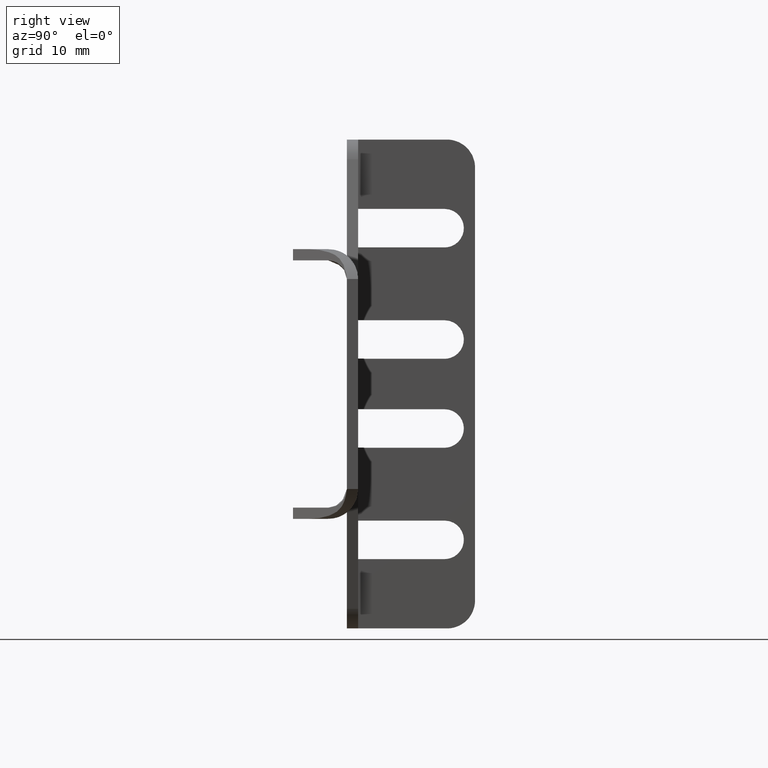
[diagram: clean part render]
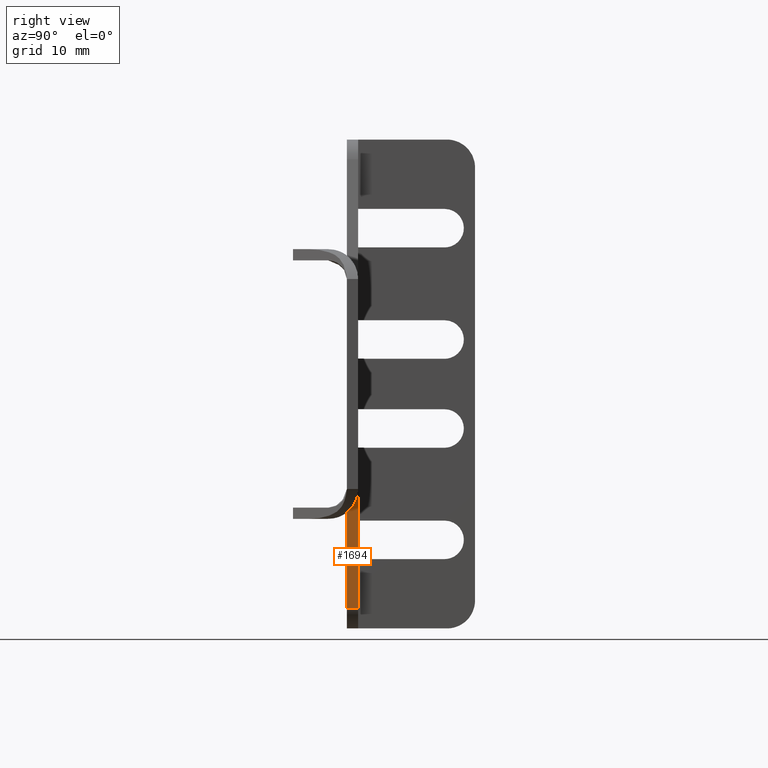
[diagram: same view with one face highlighted and labeled with its STEP entity id]
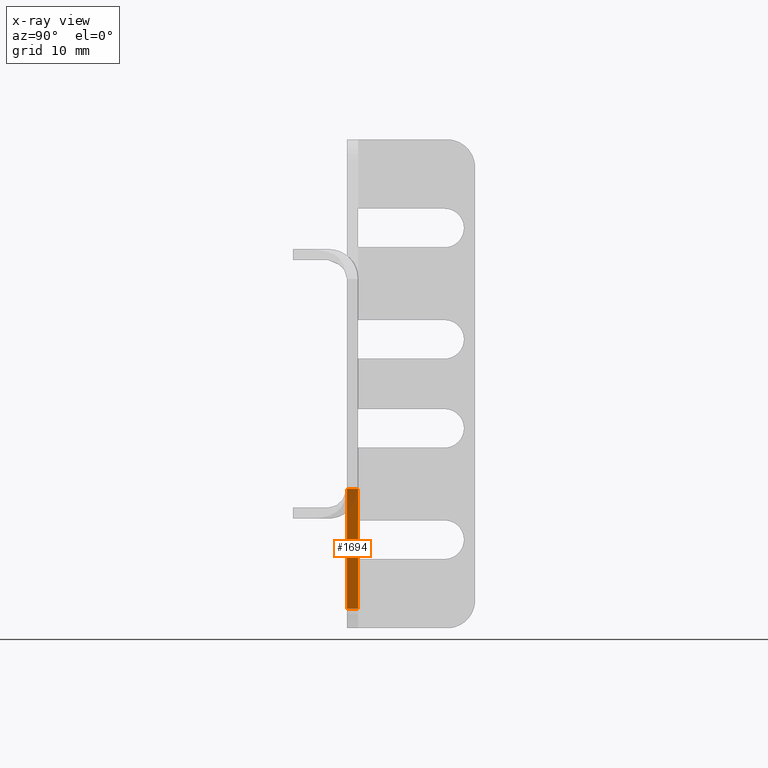
[diagram: x-ray of the same camera — body ghosted, the highlighted face saturated]
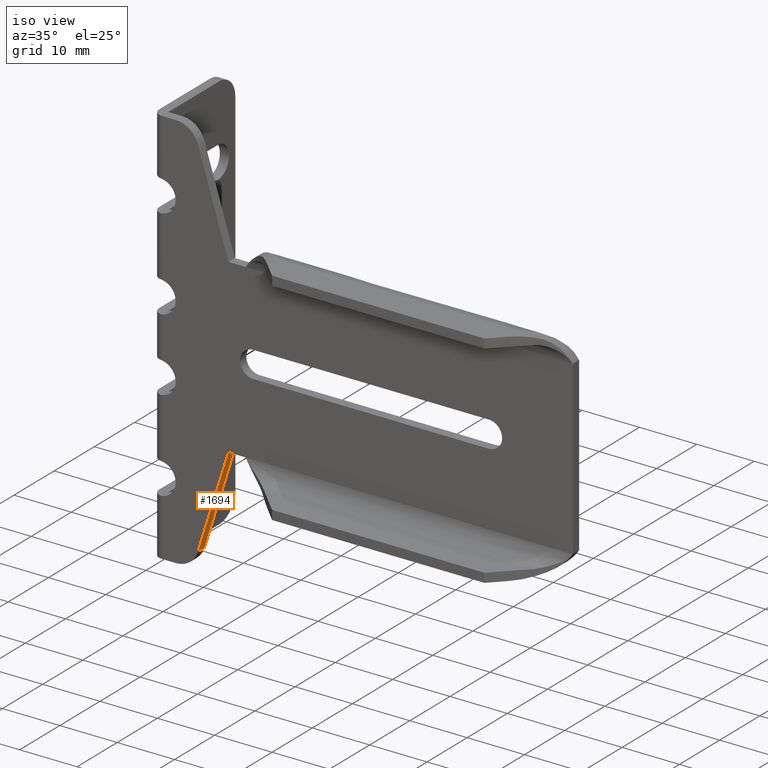
[diagram: same view with one face highlighted and labeled with its STEP entity id]
A machine part, right view. The second image highlights one B-rep face of the part: STEP entity #1694.
The next image is the same camera in x-ray: the body ghosted, the highlighted face saturated — about 13% of this face is hidden behind the body in this view.
A second angle (iso view) of the same face is appended — the face is thin or edge-on in the first view.
In plain terms, the highlighted face is a freeform B-spline surface patch.
Its self-contained STEP definition (entity closure, byte-faithful):
#1628=CARTESIAN_POINT('',(7.875533041854270,-16.699999999999999,-32.089821013040087));
#1629=VERTEX_POINT('',#1628);
#1643=CARTESIAN_POINT('',(7.875533000000001,-18.300000000000001,-32.089821000000093));
#1644=VERTEX_POINT('',#1643);
#1645=CARTESIAN_POINT('',(7.875533041854270,-16.699999999999999,-32.089821013040087));
#1646=CARTESIAN_POINT('',(7.875533000000001,-18.300000000000001,-32.089821000000093));
#1647=QUASI_UNIFORM_CURVE('',1,(#1645,#1646),.UNSPECIFIED.,.F.,.U.);
#1648=EDGE_CURVE('',#1629,#1644,#1647,.T.);
#1667=CARTESIAN_POINT('',(7.609575933652135,-18.379919160842899,-32.943457365399702));
#1668=CARTESIAN_POINT('',(13.465957256765639,-18.379919160842899,-14.146363023420770));
#1669=CARTESIAN_POINT('',(7.609575933652135,-16.620080839157101,-32.943457365399702));
#1670=CARTESIAN_POINT('',(13.465957256765639,-16.620080839157101,-14.146363023420770));
#1671=B_SPLINE_SURFACE_WITH_KNOTS('',1,1,((#1667,#1669),(#1668,#1670)),.UNSPECIFIED.,.F.,.F.,.U.,(2,2),(2,2),(0.0,19.688269550749471),(0.041708770394325,0.958291229605675),.UNSPECIFIED.);
#1672=ORIENTED_EDGE('',*,*,#1648,.F.);
#1673=CARTESIAN_POINT('',(13.199999999999999,-16.699999999999999,-15.0));
#1674=VERTEX_POINT('',#1673);
#1675=CARTESIAN_POINT('',(7.875533041854270,-16.699999999999999,-32.089821013040087));
#1676=CARTESIAN_POINT('',(13.199999999999999,-16.699999999999999,-15.0));
#1677=QUASI_UNIFORM_CURVE('',1,(#1675,#1676),.UNSPECIFIED.,.F.,.U.);
#1678=EDGE_CURVE('',#1629,#1674,#1677,.T.);
#1679=ORIENTED_EDGE('',*,*,#1678,.T.);
#1680=CARTESIAN_POINT('',(13.199999999999999,-18.300000000000001,-15.0));
#1681=VERTEX_POINT('',#1680);
#1682=CARTESIAN_POINT('',(13.199999999999999,-16.699999999999999,-15.0));
#1683=CARTESIAN_POINT('',(13.199999999999999,-18.300000000000001,-15.0));
#1684=QUASI_UNIFORM_CURVE('',1,(#1682,#1683),.UNSPECIFIED.,.F.,.U.);
#1685=EDGE_CURVE('',#1674,#1681,#1684,.T.);
#1686=ORIENTED_EDGE('',*,*,#1685,.T.);
#1687=CARTESIAN_POINT('',(13.199999999999999,-18.300000000000001,-15.0));
#1688=CARTESIAN_POINT('',(7.875533000000001,-18.300000000000001,-32.089821000000093));
#1689=QUASI_UNIFORM_CURVE('',1,(#1687,#1688),.UNSPECIFIED.,.F.,.U.);
#1690=EDGE_CURVE('',#1681,#1644,#1689,.T.);
#1691=ORIENTED_EDGE('',*,*,#1690,.T.);
#1692=EDGE_LOOP('',(#1672,#1679,#1686,#1691));
#1693=FACE_OUTER_BOUND('',#1692,.T.);
#1694=ADVANCED_FACE('',(#1693),#1671,.F.);